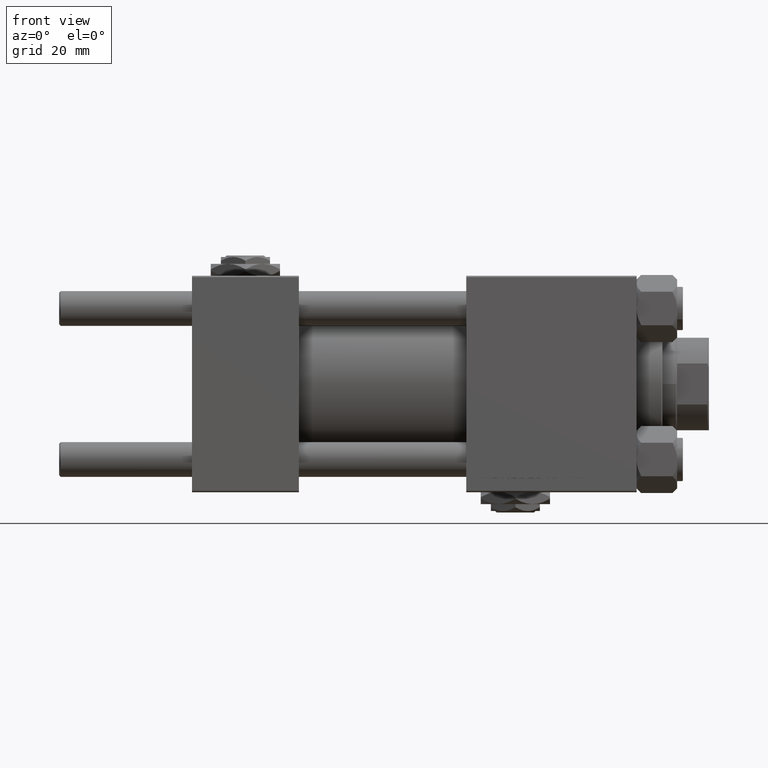
[diagram: clean part render]
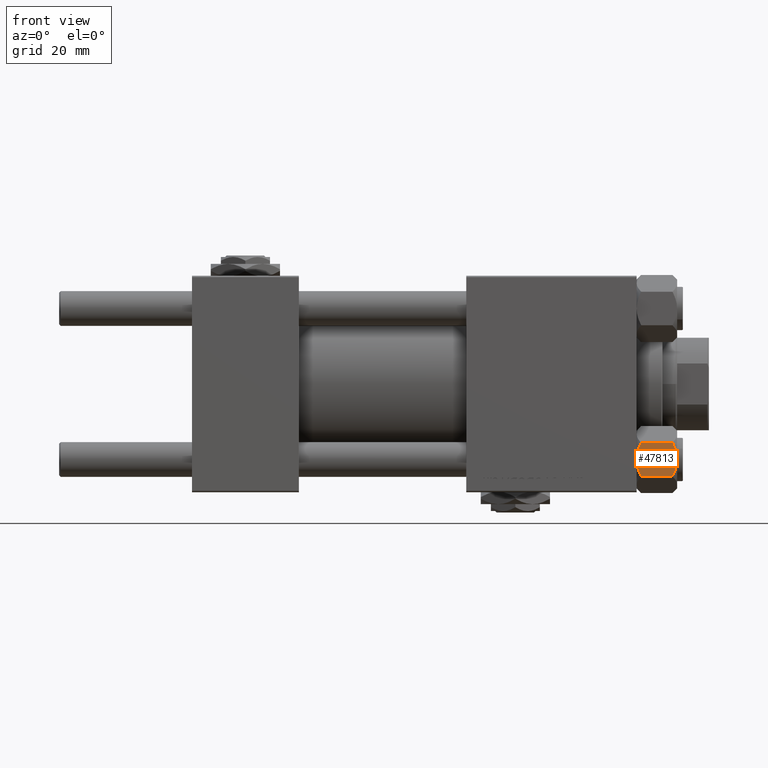
[diagram: same view with one face highlighted and labeled with its STEP entity id]
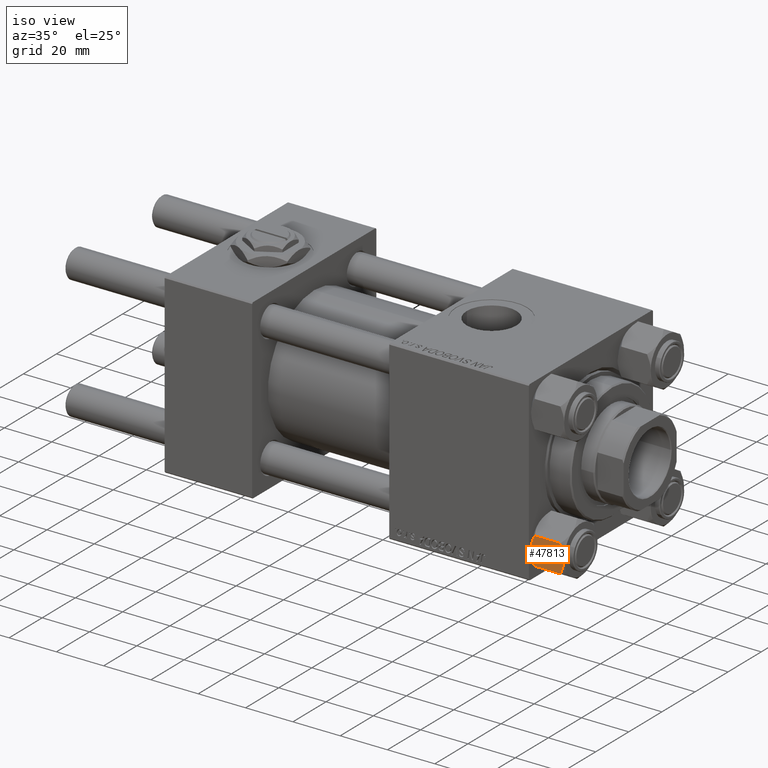
[diagram: same view with one face highlighted and labeled with its STEP entity id]
A machine part, front view. The second image highlights one B-rep face of the part: STEP entity #47813.
A second angle (iso view) of the same face is appended — the face is thin or edge-on in the first view.
In plain terms, the highlighted planar face has unit normal (-0, 1, 0).
Its self-contained STEP definition (entity closure, byte-faithful):
#1049 = CARTESIAN_POINT ( 'NONE',  ( 8.460569896449612770, 5.472293462311864864, -13.99999999999998934 ) ) ;
#1387 = CARTESIAN_POINT ( 'NONE',  ( 9.974696630283194310, 2.849749030213796885, -0.3002673809867452137 ) ) ;
#2475 = VERTEX_POINT ( 'NONE', #42866 ) ;
#2679 = B_SPLINE_CURVE_WITH_KNOTS ( 'NONE', 3,
 ( #8494, #24477, #44101, #16346, #27625, #23700 ),
 .UNSPECIFIED., .F., .F.,
 ( 4, 2, 4 ),
 ( 0.006022845781655580301, 0.009013049135303631554, 0.01200325248895168020 ),
 .UNSPECIFIED. ) ;
#4631 = CARTESIAN_POINT ( 'NONE',  ( 8.714999999999994529, 5.031607595987588333, -14.00000000000000000 ) ) ;
#4632 = EDGE_CURVE ( 'NONE', #31039, #2475, #5905, .T. ) ;
#4896 = CARTESIAN_POINT ( 'NONE',  ( 9.716999946243698005, 3.296092779912230153, -13.84547602999601068 ) ) ;
#4925 = CARTESIAN_POINT ( 'NONE',  ( 5.809999999999995168, 10.06321519197518377, -14.00000000000000000 ) ) ;
#4982 = CARTESIAN_POINT ( 'NONE',  ( 7.700834831386342394, 6.788193195293096949, -13.80960203119265017 ) ) ;
#5398 = CARTESIAN_POINT ( 'NONE',  ( 9.220295946303428636, 4.156409344131457573, -13.99999999999999822 ) ) ;
#5905 = LINE ( 'NONE', #37600, #38201 ) ;
#6259 = CARTESIAN_POINT ( 'NONE',  ( 8.714999999999994529, 5.031607595987588333, -14.00000000000000000 ) ) ;
#6918 = EDGE_CURVE ( 'NONE', #23397, #49770, #2679, .T. ) ;
#7540 = AXIS2_PLACEMENT_3D ( 'NONE', #4925, #28500, #12780 ) ;
#8494 = CARTESIAN_POINT ( 'NONE',  ( 8.714999999999994529, 5.031607595987588333, 0.000000000000000000 ) ) ;
#9502 = CARTESIAN_POINT ( 'NONE',  ( 8.969430103550385169, 4.590921729663316242, -5.293955920339376330E-15 ) ) ;
#9512 = CARTESIAN_POINT ( 'NONE',  ( 5.809999999999995168, 10.06321519197518377, -14.00000000000000000 ) ) ;
#9585 = CARTESIAN_POINT ( 'NONE',  ( 11.61999999999999922, 7.035126978385350964E-15, -12.44321519197517922 ) ) ;
#9759 = CARTESIAN_POINT ( 'NONE',  ( 11.61999999999999922, 7.247075248837498561E-15, -1.556784808024820999 ) ) ;
#11744 = VECTOR ( 'NONE', #13948, 1000.000000000000000 ) ;
#12123 = B_SPLINE_CURVE_WITH_KNOTS ( 'NONE', 3,
 ( #28819, #29079, #24895, #40870, #4982, #20968, #1049, #6259 ),
 .UNSPECIFIED., .F., .F.,
 ( 4, 2, 2, 4 ),
 ( 2.544312114902182352E-07, 0.003011550106433543827, 0.004517197944044569653, 0.006022845781655595046 ),
 .UNSPECIFIED. ) ;
#12780 = DIRECTION ( 'NONE',  ( 0.5000000000000002220, -0.8660254037844384856, 0.000000000000000000 ) ) ;
#13175 = CARTESIAN_POINT ( 'NONE',  ( 11.16445427487471775, 0.7890283410878045078, -1.101239082899540200 ) ) ;
#13687 = CARTESIAN_POINT ( 'NONE',  ( 8.714999999999994529, 5.031607595987588333, 0.000000000000000000 ) ) ;
#13948 = DIRECTION ( 'NONE',  ( -0.000000000000000000, -0.000000000000000000, 1.000000000000000000 ) ) ;
#13983 = EDGE_CURVE ( 'NONE', #32178, #31039, #19586, .T. ) ;
#16192 = PLANE ( 'NONE',  #7540 ) ;
#16205 = B_SPLINE_CURVE_WITH_KNOTS ( 'NONE', 3,
 ( #9759, #13175, #29163, #1387, #37784, #25231, #9502, #13687 ),
 .UNSPECIFIED., .F., .F.,
 ( 4, 2, 2, 4 ),
 ( 2.544312114899127210E-07, 0.003011550106433536454, 0.004517197944044559245, 0.006022845781655580301 ),
 .UNSPECIFIED. ) ;
#16346 = CARTESIAN_POINT ( 'NONE',  ( 6.733375043383494685, 8.463882702393844326, -0.7114554706434600417 ) ) ;
#16964 = CARTESIAN_POINT ( 'NONE',  ( 8.714999999999994529, 5.031607595987588333, 0.000000000000000000 ) ) ;
#17894 = LINE ( 'NONE', #9512, #11744 ) ;
#19586 = B_SPLINE_CURVE_WITH_KNOTS ( 'NONE', 3,
 ( #4631, #5398, #4896, #29250, #36318, #9585 ),
 .UNSPECIFIED., .F., .F.,
 ( 4, 2, 4 ),
 ( 0.006022845781655595046, 0.009013049135303638493, 0.01200325248895168194 ),
 .UNSPECIFIED. ) ;
#19980 = VERTEX_POINT ( 'NONE', #20828 ) ;
#20828 = CARTESIAN_POINT ( 'NONE',  ( 5.809999999999994280, 10.06321519197518377, -12.44321519197517389 ) ) ;
#20968 = CARTESIAN_POINT ( 'NONE',  ( 8.202333004087895674, 5.919572880271055659, -13.96005881939308502 ) ) ;
#21815 = ORIENTED_EDGE ( 'NONE', *, *, #50312, .T. ) ;
#23397 = VERTEX_POINT ( 'NONE', #16964 ) ;
#23700 = CARTESIAN_POINT ( 'NONE',  ( 5.809999999999995168, 10.06321519197518377, -1.556784808024826106 ) ) ;
#24477 = CARTESIAN_POINT ( 'NONE',  ( 8.209704053696574633, 5.906805847843728863, -5.031375706690544014E-15 ) ) ;
#24895 = CARTESIAN_POINT ( 'NONE',  ( 6.731401448974984270, 8.467301068182921497, -13.28585617404752384 ) ) ;
#25175 = CARTESIAN_POINT ( 'NONE',  ( 5.809999999999995168, 10.06321519197518377, -1.556784808024826106 ) ) ;
#25231 = CARTESIAN_POINT ( 'NONE',  ( 9.227666995912100489, 4.143642311704127223, -0.03994118060691630862 ) ) ;
#27152 = EDGE_CURVE ( 'NONE', #19980, #32178, #12123, .T. ) ;
#27231 = CARTESIAN_POINT ( 'NONE',  ( 8.714999999999994529, 5.031607595987588333, -14.00000000000000000 ) ) ;
#27625 = CARTESIAN_POINT ( 'NONE',  ( 6.265018354709772197, 9.275100283241449972, -1.101766453314962924 ) ) ;
#28500 = DIRECTION ( 'NONE',  ( -0.8660254037844385966, -0.5000000000000003331, 0.000000000000000000 ) ) ;
#28819 = CARTESIAN_POINT ( 'NONE',  ( 5.809999999999994280, 10.06321519197518377, -12.44321519197517389 ) ) ;
#29072 = ORIENTED_EDGE ( 'NONE', *, *, #6918, .F. ) ;
#29079 = CARTESIAN_POINT ( 'NONE',  ( 6.265545725125281074, 9.274186850887387479, -12.89876091710045891 ) ) ;
#29163 = CARTESIAN_POINT ( 'NONE',  ( 10.69859855102500923, 1.595914123792269601, -0.7141438259524722776 ) ) ;
#29250 = CARTESIAN_POINT ( 'NONE',  ( 10.69662495661650148, 1.599332489581338113, -13.28854452935654074 ) ) ;
#29766 = EDGE_LOOP ( 'NONE', ( #37191, #21815, #29072, #46498, #38392, #48065 ) ) ;
#31039 = VERTEX_POINT ( 'NONE', #33247 ) ;
#31595 = EDGE_CURVE ( 'NONE', #2475, #23397, #16205, .T. ) ;
#32178 = VERTEX_POINT ( 'NONE', #27231 ) ;
#33247 = CARTESIAN_POINT ( 'NONE',  ( 11.61999999999999922, 7.035126978385350964E-15, -12.44321519197517922 ) ) ;
#36318 = CARTESIAN_POINT ( 'NONE',  ( 11.16498164529021864, 0.7881149087337363524, -12.89823354668503974 ) ) ;
#37133 = FACE_OUTER_BOUND ( 'NONE', #29766, .T. ) ;
#37191 = ORIENTED_EDGE ( 'NONE', *, *, #27152, .F. ) ;
#37600 = CARTESIAN_POINT ( 'NONE',  ( 11.61999999999999922, 7.017202701192663836E-15, -14.00000000000000000 ) ) ;
#37784 = CARTESIAN_POINT ( 'NONE',  ( 9.729165168613654657, 3.275021996682086378, -0.1903979688073500487 ) ) ;
#38201 = VECTOR ( 'NONE', #45188, 1000.000000000000000 ) ;
#38392 = ORIENTED_EDGE ( 'NONE', *, *, #4632, .F. ) ;
#40870 = CARTESIAN_POINT ( 'NONE',  ( 7.455303369716803630, 7.213466161761386886, -13.69973261901325223 ) ) ;
#42866 = CARTESIAN_POINT ( 'NONE',  ( 11.61999999999999922, 7.247075248837498561E-15, -1.556784808024820999 ) ) ;
#44101 = CARTESIAN_POINT ( 'NONE',  ( 7.713000053756304375, 6.767122412062953174, -0.1545239700039927888 ) ) ;
#45188 = DIRECTION ( 'NONE',  ( -0.000000000000000000, -0.000000000000000000, 1.000000000000000000 ) ) ;
#46498 = ORIENTED_EDGE ( 'NONE', *, *, #31595, .F. ) ;
#47813 = ADVANCED_FACE ( 'NONE', ( #37133 ), #16192, .F. ) ;
#48065 = ORIENTED_EDGE ( 'NONE', *, *, #13983, .F. ) ;
#49770 = VERTEX_POINT ( 'NONE', #25175 ) ;
#50312 = EDGE_CURVE ( 'NONE', #19980, #49770, #17894, .T. ) ;